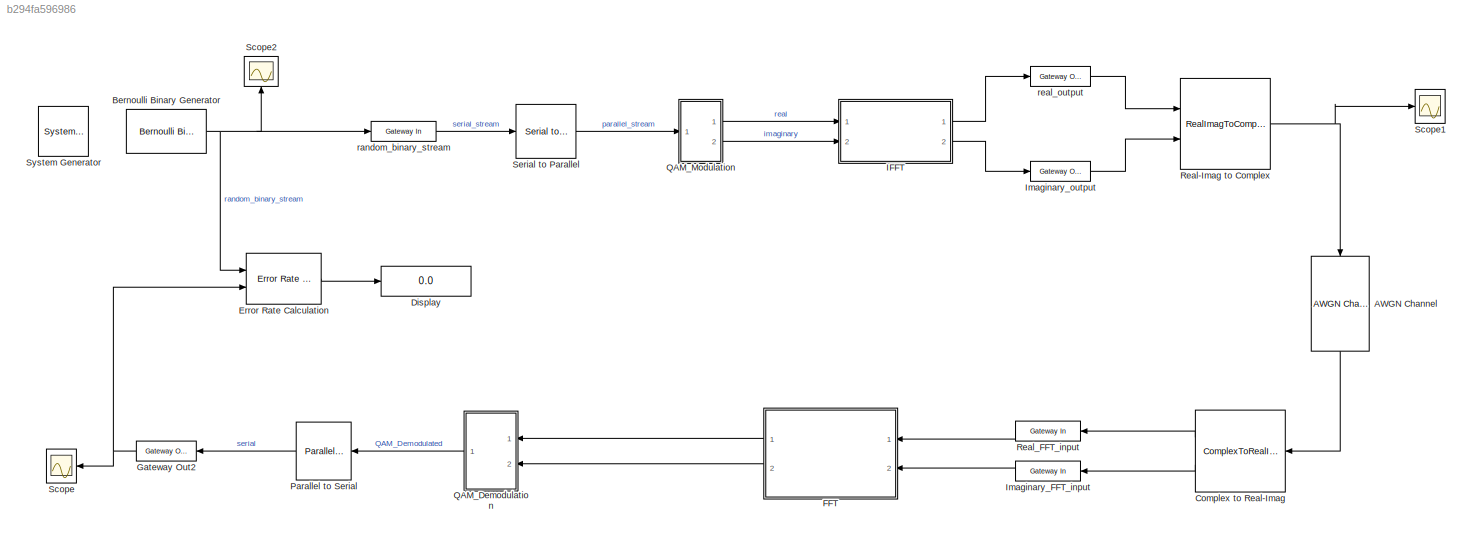
MODEL slx_b294fa596986
KIND model
CONFIG AbsTol = auto
CONFIG EnableMultiTasking = off
CONFIG FixedStep = auto
CONFIG MaxStep = auto
CONFIG MinStep = auto
CONFIG RelTol = 1e-3
CONFIG SampleTimeConstraint = Unconstrained
CONFIG SolverName = VariableStepAuto
CONFIG StartTime = 0.0
CONFIG StopTime = 5000
BLOCK [Reference]  System Generator  REF=xbsIndex_r4/ System Generator
  AttributesFormatString = System\nGenerator
  Ports = []
  SourceBlock = xbsIndex_r4/ System Generator
  SourceType = Xilinx System Generator Block
  Tag = genX
  UserDataPersistent = on
BLOCK [Reference] AWGN Channel  REF=commchan3/AWGN
Channel
  NameLocation = left
  Ports = [1, 1]
  SourceBlock = commchan3/AWGN\nChannel
  SourceProductBaseCode = CM
  SourceType = AWGN Channel
  UserDataPersistent = on
BLOCK [Reference] Bernoulli Binary Generator  REF=commrandsrc3/Bernoulli Binary
Generator
  Ports = [0, 1]
  SourceBlock = commrandsrc3/Bernoulli Binary\nGenerator
  SourceProductBaseCode = CM
  SourceType = Bernoulli Binary Generator
BLOCK [ComplexToRealImag] Complex to Real-Imag
  NameLocation = top
  Ports = [1, 2]
BLOCK [Display] Display
  Decimation = 1
  Ports = [1]
BLOCK [Reference] Error Rate Calculation  REF=commsink2/Error Rate
Calculation
  Ports = [2, 1]
  SourceBlock = commsink2/Error Rate\nCalculation
  SourceProductName = Communications Toolbox
  SourceType = Error Rate Calculation
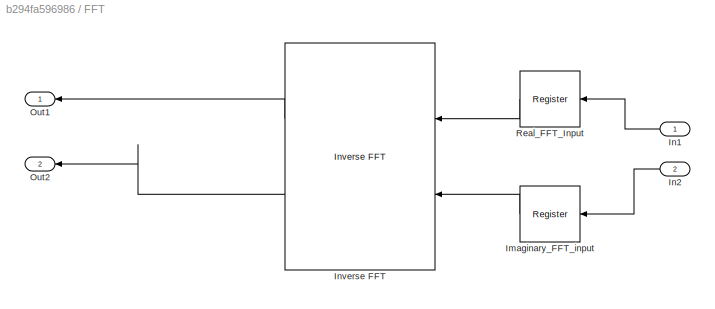
BLOCK [SubSystem] FFT
  NameLocation = top
  Ports = [2, 2]
  RequestExecContextInheritance = off
BLOCK [Reference] FFT/Imaginary_FFT_input  REF=xbsIndex_r4/Register
  NameLocation = top
  Ports = [1, 1]
  SourceBlock = xbsIndex_r4/Register
  SourceType = Xilinx Register Block
BLOCK [Inport] FFT/In1
BLOCK [Inport] FFT/In2
  Port = 2
BLOCK [Reference] FFT/Inverse FFT  REF=xbsIndex_r4/Inverse FFT
  NameLocation = top
  Ports = [2, 2]
  SourceBlock = xbsIndex_r4/Inverse FFT
  SourceType = Xilinx Inverse Fast Fourier Transform Block
BLOCK [Outport] FFT/Out1
BLOCK [Outport] FFT/Out2
  Port = 2
BLOCK [Reference] FFT/Real_FFT_Input  REF=xbsIndex_r4/Register
  NameLocation = top
  Ports = [1, 1]
  SourceBlock = xbsIndex_r4/Register
  SourceType = Xilinx Register Block
BLOCK [Reference] Gateway Out2  REF=xbsIndex_r4/Gateway Out
  NameLocation = top
  Ports = [1, 1]
  SourceBlock = xbsIndex_r4/Gateway Out
  SourceType = Xilinx Gateway Out Block
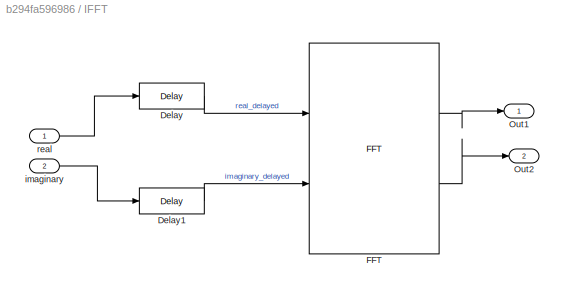
BLOCK [SubSystem] IFFT
  Ports = [2, 2]
  RequestExecContextInheritance = off
BLOCK [Reference] IFFT/Delay  REF=xbsIndex_r4/Delay
  Ports = [1, 1]
  SourceBlock = xbsIndex_r4/Delay
  SourceType = Xilinx Delay Block
BLOCK [Reference] IFFT/Delay1  REF=xbsIndex_r4/Delay
  Ports = [1, 1]
  SourceBlock = xbsIndex_r4/Delay
  SourceType = Xilinx Delay Block
BLOCK [Reference] IFFT/FFT  REF=xbsIndex_r4/FFT
  Ports = [2, 2]
  SourceBlock = xbsIndex_r4/FFT
  SourceType = Xilinx Forward Fast Fourier Transform Block
BLOCK [Outport] IFFT/Out1
BLOCK [Outport] IFFT/Out2
  Port = 2
BLOCK [Inport] IFFT/imaginary
  Port = 2
BLOCK [Inport] IFFT/real
BLOCK [Reference] Imaginary_FFT_input  REF=xbsIndex_r4/Gateway In
  NameLocation = top
  Ports = [1, 1]
  SourceBlock = xbsIndex_r4/Gateway In
  SourceType = Xilinx Gateway In Block
BLOCK [Reference] Imaginary_output  REF=xbsIndex_r4/Gateway Out
  Ports = [1, 1]
  SourceBlock = xbsIndex_r4/Gateway Out
  SourceType = Xilinx Gateway Out Block
BLOCK [Reference] Parallel to Serial  REF=xbsIndex_r4/Parallel to Serial
  NameLocation = top
  Ports = [1, 1]
  SourceBlock = xbsIndex_r4/Parallel to Serial
  SourceType = Xilinx Parallel to Serial Converter Block
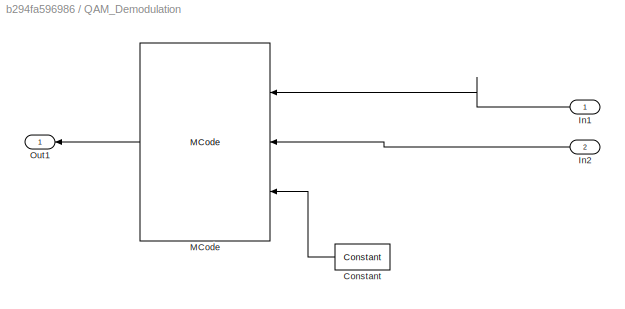
BLOCK [SubSystem] QAM_Demodulation
  NameLocation = top
  Ports = [2, 1]
  RequestExecContextInheritance = off
BLOCK [Reference] QAM_Demodulation/Constant  REF=xbsIndex_r4/Constant
  NameLocation = top
  Ports = [0, 1]
  SourceBlock = xbsIndex_r4/Constant
  SourceType = Xilinx Constant Block Block
BLOCK [Inport] QAM_Demodulation/In1
BLOCK [Inport] QAM_Demodulation/In2
  Port = 2
BLOCK [Reference] QAM_Demodulation/MCode  REF=xbsIndex_r4/MCode
  NameLocation = top
  Ports = [3, 1]
  SourceBlock = xbsIndex_r4/MCode
  SourceType = Xilinx MCode Block Block
BLOCK [Outport] QAM_Demodulation/Out1
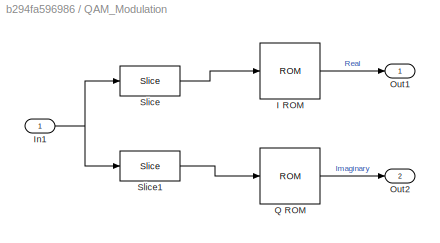
BLOCK [SubSystem] QAM_Modulation
  Ports = [1, 2]
  RequestExecContextInheritance = off
BLOCK [Reference] QAM_Modulation/I ROM  REF=xbsIndex_r4/ROM
  Ports = [1, 1]
  SourceBlock = xbsIndex_r4/ROM
  SourceType = Xilinx Single Port Read-Only Memory Block
BLOCK [Inport] QAM_Modulation/In1
BLOCK [Outport] QAM_Modulation/Out1
BLOCK [Outport] QAM_Modulation/Out2
  Port = 2
BLOCK [Reference] QAM_Modulation/Q ROM  REF=xbsIndex_r4/ROM
  Ports = [1, 1]
  SourceBlock = xbsIndex_r4/ROM
  SourceType = Xilinx Single Port Read-Only Memory Block
BLOCK [Reference] QAM_Modulation/Slice  REF=xbsIndex_r4/Slice
  Ports = [1, 1]
  SourceBlock = xbsIndex_r4/Slice
  SourceType = Xilinx Bit Slice Extractor Block
BLOCK [Reference] QAM_Modulation/Slice1  REF=xbsIndex_r4/Slice
  Ports = [1, 1]
  SourceBlock = xbsIndex_r4/Slice
  SourceType = Xilinx Bit Slice Extractor Block
BLOCK [RealImagToComplex] Real-Imag to Complex
  Ports = [2, 1]
BLOCK [Reference] Real_FFT_input  REF=xbsIndex_r4/Gateway In
  NameLocation = top
  Ports = [1, 1]
  SourceBlock = xbsIndex_r4/Gateway In
  SourceType = Xilinx Gateway In Block
BLOCK [Scope] Scope
  Floating = off
  NameLocation = top
  NumInputPorts = 1
  Ports = [1]
  ScopeSpecificationString = Simulink.scopes.TimeScopeBlockCfg('CurrentConfiguration', extmgr.ConfigurationSet(extmgr.Configuration('Core','General UI',true),extmgr.Configuration('Core','Source UI',true),extmgr.Configuration('Sources','WiredSimulink',true),extmgr.Configuration('Visuals','Time Domain',true,'SerializedDisplays',{struct('MinYLimReal','-0.125','MaxYLimReal','1.125','YLabelReal','','MinYLimMag','0.00000','MaxYLimM...<+1360ch>
BLOCK [Scope] Scope1
  Floating = off
  NumInputPorts = 1
  Ports = [1]
  ScopeSpecificationString = Simulink.scopes.TimeScopeBlockCfg('CurrentConfiguration', extmgr.ConfigurationSet(extmgr.Configuration('Core','General UI',true),extmgr.Configuration('Core','Source UI',true),extmgr.Configuration('Sources','WiredSimulink',true,'DataLoggingVariableName','ScopeData1'),extmgr.Configuration('Visuals','Time Domain',true,'SerializedDisplays',{struct('MinYLimReal','-34.01764','MaxYLimReal','25.83462','YL...<+1460ch>
BLOCK [Scope] Scope2
  Floating = off
  NameLocation = right
  NumInputPorts = 1
  Ports = [1]
  ScopeSpecificationString = Simulink.scopes.TimeScopeBlockCfg('CurrentConfiguration', extmgr.ConfigurationSet(extmgr.Configuration('Core','General UI',true),extmgr.Configuration('Core','Source UI',true),extmgr.Configuration('Sources','WiredSimulink',true,'DataLoggingVariableName','ScopeData2'),extmgr.Configuration('Visuals','Time Domain',true,'SerializedDisplays',{struct('MinYLimReal','-0.125','MaxYLimReal','1.125','YLabelRe...<+1433ch>
BLOCK [Reference] Serial to Parallel  REF=xbsIndex_r4/Serial to Parallel
  Ports = [1, 1]
  SourceBlock = xbsIndex_r4/Serial to Parallel
  SourceType = Xilinx Serial to Parallel Converter Block
BLOCK [Reference] random_binary_stream  REF=xbsIndex_r4/Gateway In
  Ports = [1, 1]
  SourceBlock = xbsIndex_r4/Gateway In
  SourceType = Xilinx Gateway In Block
BLOCK [Reference] real_output  REF=xbsIndex_r4/Gateway Out
  Ports = [1, 1]
  SourceBlock = xbsIndex_r4/Gateway Out
  SourceType = Xilinx Gateway Out Block
LINE AWGN Channel:1 -> Complex to Real-Imag:1
NET Bernoulli Binary Generator:1 -> Error Rate Calculation:1, Scope2:1, random_binary_stream:1
LINE Complex to Real-Imag:1 -> Real_FFT_input:1
LINE Complex to Real-Imag:2 -> Imaginary_FFT_input:1
LINE Error Rate Calculation:1 -> Display:1
LINE FFT/Imaginary_FFT_input:1 -> FFT/Inverse FFT:2
LINE FFT/In1:1 -> FFT/Real_FFT_Input:1
LINE FFT/In2:1 -> FFT/Imaginary_FFT_input:1
LINE FFT/Inverse FFT:1 -> FFT/Out1:1
LINE FFT/Inverse FFT:2 -> FFT/Out2:1
LINE FFT/Real_FFT_Input:1 -> FFT/Inverse FFT:1
LINE FFT:1 -> QAM_Demodulation:1
LINE FFT:2 -> QAM_Demodulation:2
NET Gateway Out2:1 -> Error Rate Calculation:2, Scope:1
LINE IFFT/Delay1:1 -> IFFT/FFT:2
LINE IFFT/Delay:1 -> IFFT/FFT:1
LINE IFFT/FFT:1 -> IFFT/Out1:1
LINE IFFT/FFT:2 -> IFFT/Out2:1
LINE IFFT/imaginary:1 -> IFFT/Delay1:1
LINE IFFT/real:1 -> IFFT/Delay:1
LINE IFFT:1 -> real_output:1
LINE IFFT:2 -> Imaginary_output:1
LINE Imaginary_FFT_input:1 -> FFT:2
LINE Imaginary_output:1 -> Real-Imag to Complex:2
LINE Parallel to Serial:1 -> Gateway Out2:1
LINE QAM_Demodulation/Constant:1 -> QAM_Demodulation/MCode:3
LINE QAM_Demodulation/In1:1 -> QAM_Demodulation/MCode:1
LINE QAM_Demodulation/In2:1 -> QAM_Demodulation/MCode:2
LINE QAM_Demodulation/MCode:1 -> QAM_Demodulation/Out1:1
LINE QAM_Demodulation:1 -> Parallel to Serial:1
LINE QAM_Modulation/I ROM:1 -> QAM_Modulation/Out1:1
NET QAM_Modulation/In1:1 -> QAM_Modulation/Slice1:1, QAM_Modulation/Slice:1
LINE QAM_Modulation/Q ROM:1 -> QAM_Modulation/Out2:1
LINE QAM_Modulation/Slice1:1 -> QAM_Modulation/Q ROM:1
LINE QAM_Modulation/Slice:1 -> QAM_Modulation/I ROM:1
LINE QAM_Modulation:1 -> IFFT:1
LINE QAM_Modulation:2 -> IFFT:2
NET Real-Imag to Complex:1 -> AWGN Channel:1, Scope1:1
LINE Real_FFT_input:1 -> FFT:1
LINE Serial to Parallel:1 -> QAM_Modulation:1
LINE random_binary_stream:1 -> Serial to Parallel:1
LINE real_output:1 -> Real-Imag to Complex:1
note: NET lines group one-source signal fan-out (src -> all destinations, sorted); 1:1 wires keep LINE
